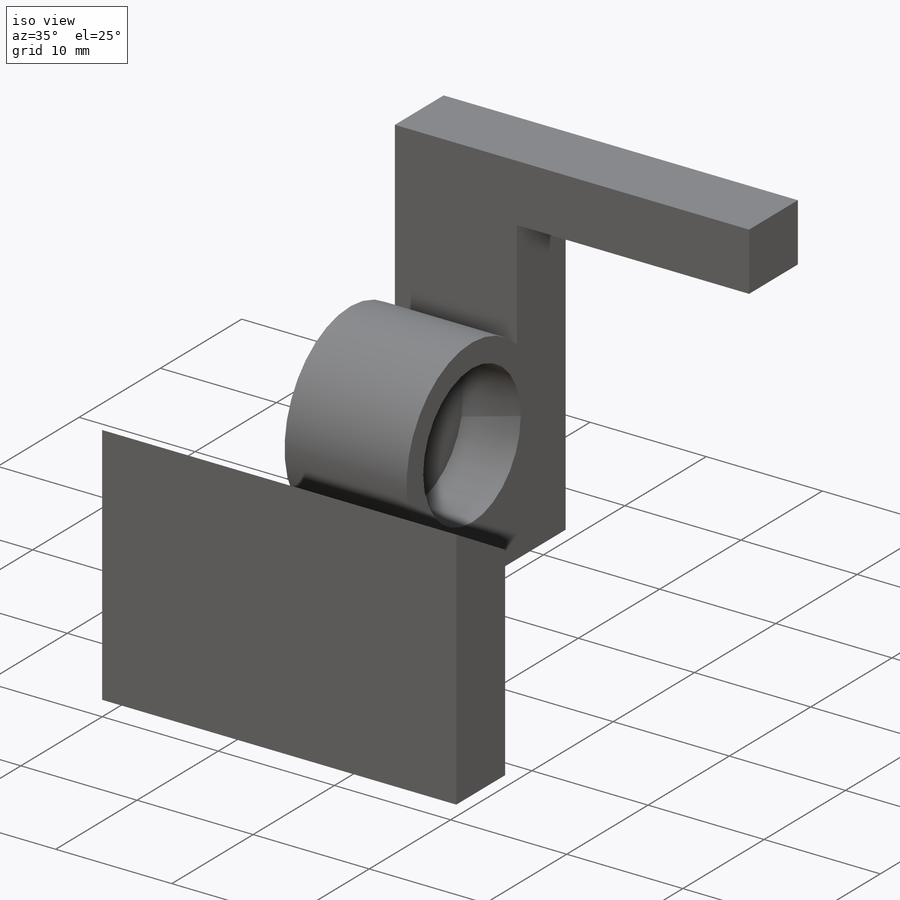
[diagram: iso view]
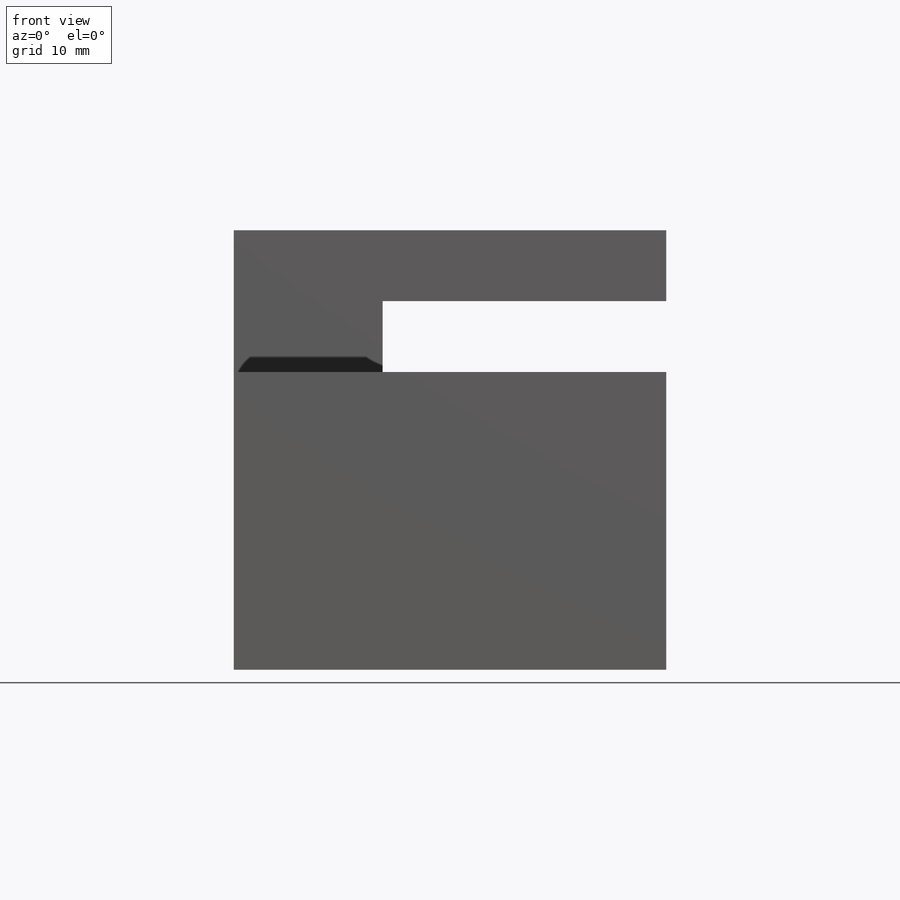
[diagram: front view]
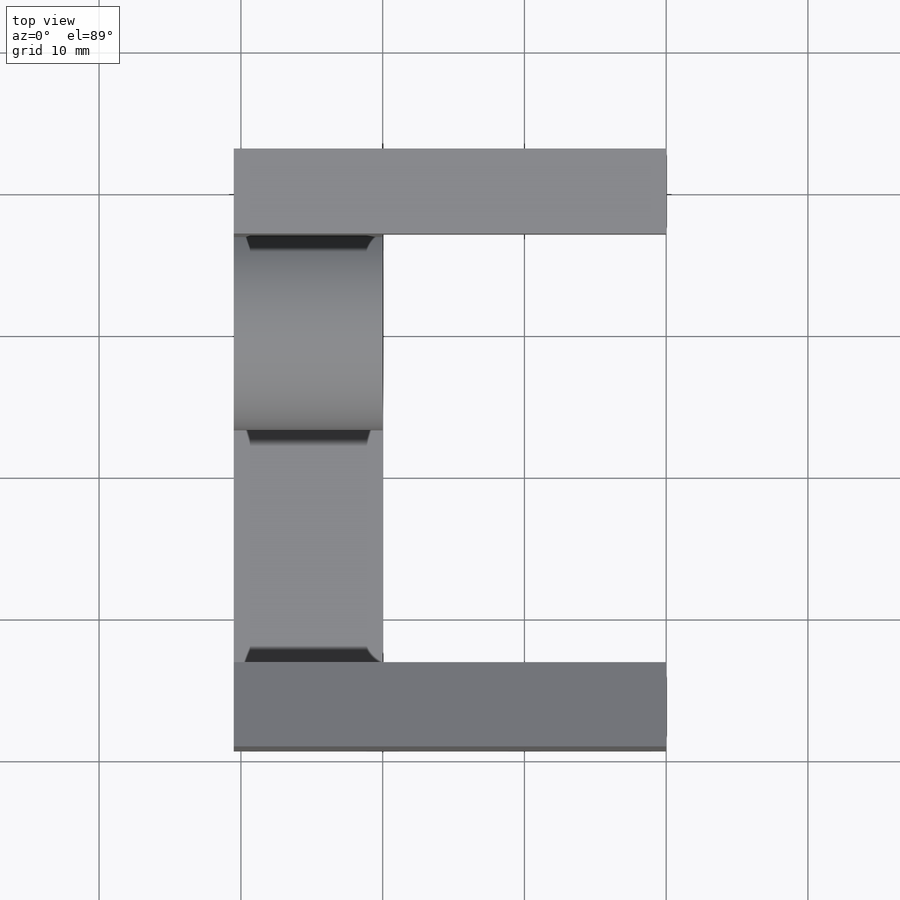
[diagram: top view]
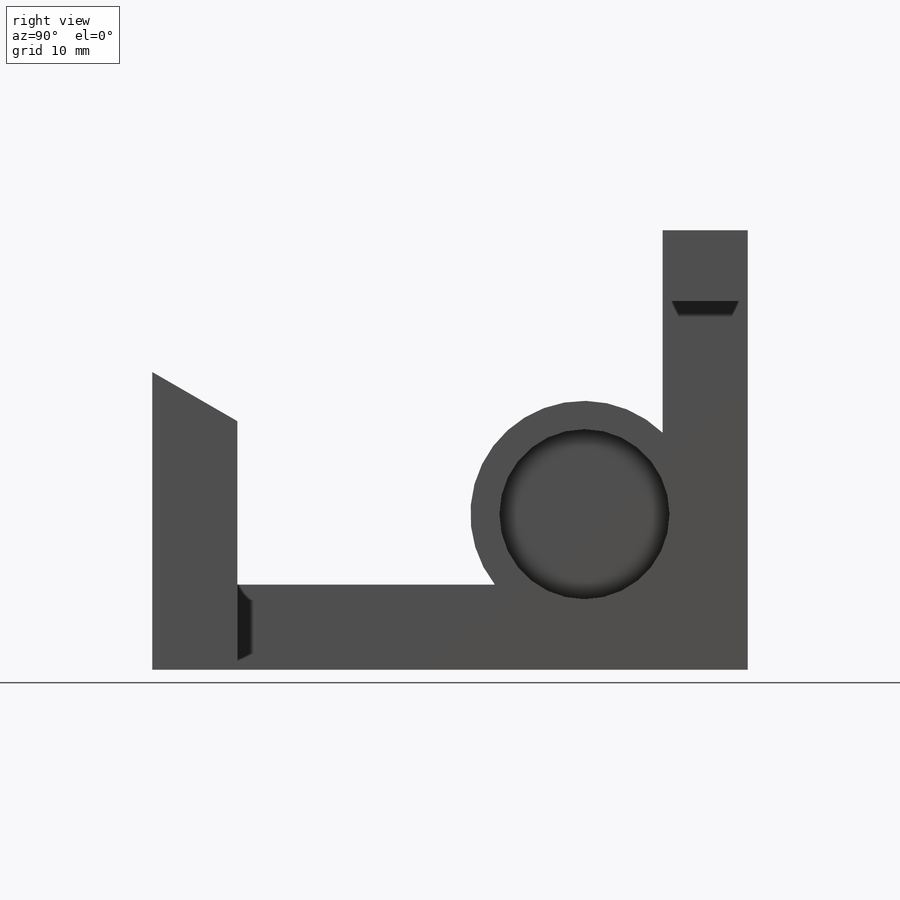
[diagram: right view]
SOLIDWORKS PART (.sldprt)
format: sldprt  version: not decoded by parser v0  size: 204,800 bytes
history: native  units: mm
features: sketch x6, extrude x4, cut_extrude x2, material x1 (+13 scaffold rows collapsed)
feature tree (26):
  scaffold x13  (default folders/planes/origin — collapsed)
  material  "Material <not specified>"
  sketch  "Sketch2"  dims[c1.D4=~5.910632mm c1.D5=16.0mm c1.D6=~4.215839mm c1.D1=6.0mm c1.D2=6.0mm c1.D3=20.0mm c2.D4=30.0mm]
  extrude  "Boss-Extrude1"  Depth=10.5mm
  sketch  "Sketch4"  dims[D1=20.0mm]
  extrude  "Boss-Extrude2"  Depth=5mm
  sketch  "Sketch5"  dims[D1=20.0mm]
  extrude  "Boss-Extrude3"  Depth=6mm
  sketch  "Sketch6"  dims[D1=~3.771238mm]
  cut_extrude  "Cut-Extrude2"  Depth=5mm
  sketch  "Sketch11"
  extrude  "Boss-Extrude5"  Depth=15mm
  sketch  "Sketch12"  dims[c1.D1=~4.971658mm c2.D1=60.0deg]
  cut_extrude  "Cut-Extrude4"  [1 undecoded]
decode coverage: 10 of 12 modeling features carry decoded parameters
note: ~ marks probable driven/reference dimensions
note: 1 parameter value undecoded
note: suppression state not decoded; provenance and decode notes live in map.json
